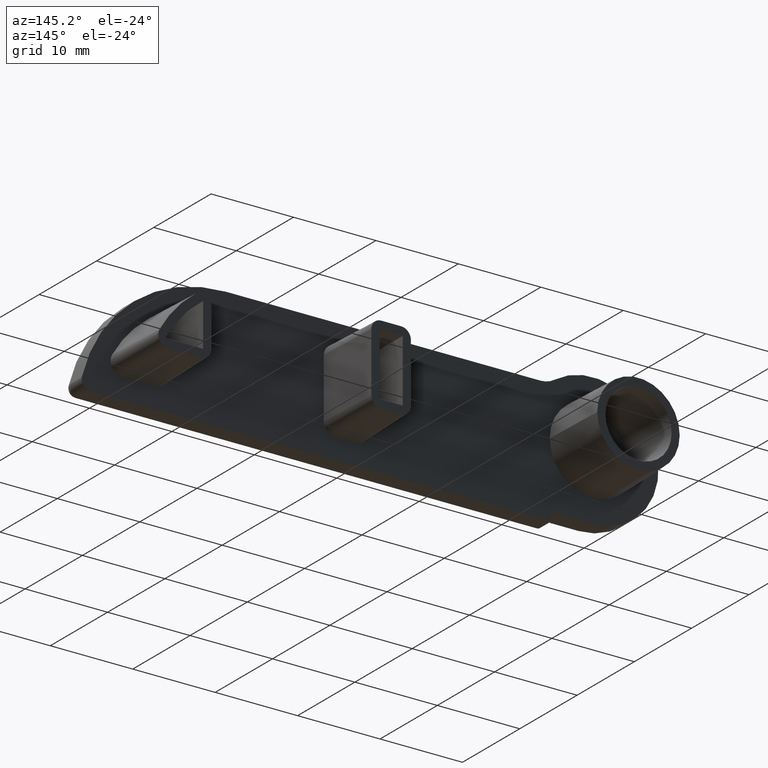
[diagram: clean part render]
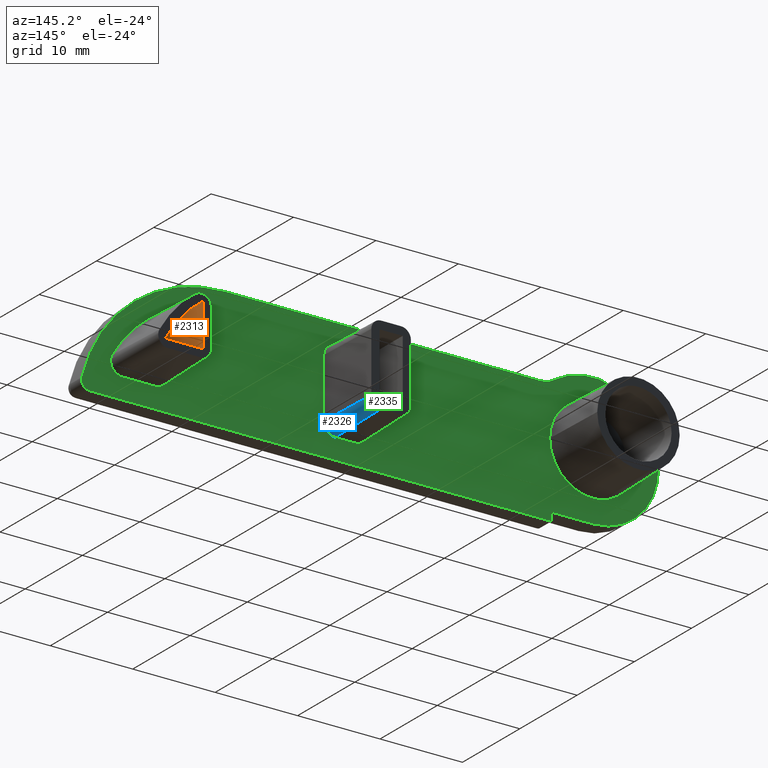
[diagram: same view with three faces highlighted in distinct colors, each labeled with its STEP entity id]
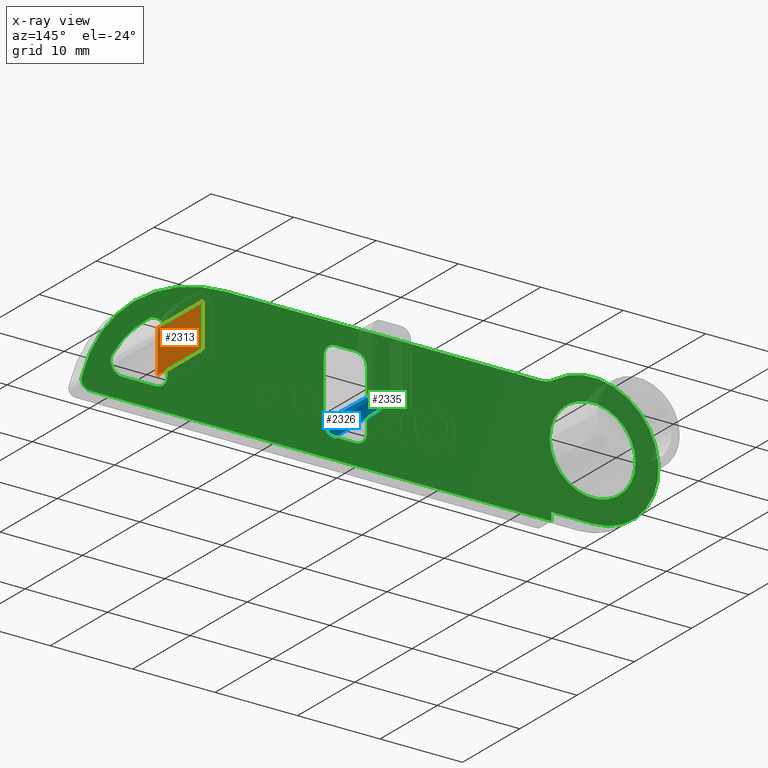
[diagram: x-ray of the same camera — body ghosted, the three highlighted faces saturated]
A machine part, auxiliary view with three faces highlighted in distinct colors.
The next image is the same camera in x-ray (body ghosted, the three faces saturated) — at least one of them is partly hidden behind the body in this view.
Their STEP definitions:

[orange] entity #2313 — the highlighted planar face has unit normal (-1, 0, 0).
#321=FACE_OUTER_BOUND('',#471,.T.);
#471=EDGE_LOOP('',(#1987,#1988,#1989,#1990));
#666=LINE('',#4408,#877);
#668=LINE('',#4414,#879);
#669=LINE('',#4416,#880);
#670=LINE('',#4417,#881);
#877=VECTOR('',#2840,10.);
#879=VECTOR('',#2846,10.);
#880=VECTOR('',#2847,10.);
#881=VECTOR('',#2848,10.);
#1100=VERTEX_POINT('',#4404);
#1102=VERTEX_POINT('',#4407);
#1104=VERTEX_POINT('',#4413);
#1105=VERTEX_POINT('',#4415);
#1406=EDGE_CURVE('',#1100,#1102,#666,.T.);
#1409=EDGE_CURVE('',#1104,#1100,#668,.T.);
#1410=EDGE_CURVE('',#1104,#1105,#669,.T.);
#1411=EDGE_CURVE('',#1102,#1105,#670,.T.);
#1987=ORIENTED_EDGE('',*,*,#1409,.F.);
#1988=ORIENTED_EDGE('',*,*,#1410,.T.);
#1989=ORIENTED_EDGE('',*,*,#1411,.F.);
#1990=ORIENTED_EDGE('',*,*,#1406,.F.);
#2187=PLANE('',#2453);
#2313=ADVANCED_FACE('',(#321),#2187,.F.);
#2453=AXIS2_PLACEMENT_3D('',#4412,#2844,#2845);
#2840=DIRECTION('',(0.,1.,0.));
#2844=DIRECTION('center_axis',(-1.,0.,0.));
#2845=DIRECTION('ref_axis',(0.,0.,1.));
#2846=DIRECTION('',(0.,0.,1.));
#2847=DIRECTION('',(0.,1.,0.));
#2848=DIRECTION('',(0.,-4.72726437266745E-17,-1.));
#4404=CARTESIAN_POINT('',(52.8072697549574,1.5,-0.0520258457741796));
#4407=CARTESIAN_POINT('',(52.8072697549574,9.5,-0.0520258457741796));
#4408=CARTESIAN_POINT('',(52.8072697549574,1.5,-0.0520258457741796));
#4412=CARTESIAN_POINT('Origin',(52.8072697549574,1.5,-5.26453338819946));
#4413=CARTESIAN_POINT('',(52.8072697549574,1.5,-5.26453338819946));
#4414=CARTESIAN_POINT('',(52.8072697549574,1.5,-3.60448445287734));
#4415=CARTESIAN_POINT('',(52.8072697549574,9.5,-5.26453338819946));
#4416=CARTESIAN_POINT('',(52.8072697549574,1.5,-5.26453338819946));
#4417=CARTESIAN_POINT('',(52.8072697549574,9.5,-4.34704432659745));

[blue] entity #2326 — the highlighted conical surface has half-angle 1.5 deg.
#20=CONICAL_SURFACE('',#2474,1.2,0.0261799387799149);
#70=CIRCLE('',#2475,1.4094873725535);
#71=CIRCLE('',#2476,1.2);
#334=FACE_OUTER_BOUND('',#485,.T.);
#485=EDGE_LOOP('',(#2044,#2045,#2046,#2047));
#695=LINE('',#4487,#906);
#696=LINE('',#4490,#907);
#906=VECTOR('',#2917,10.);
#907=VECTOR('',#2920,10.);
#1126=VERTEX_POINT('',#4483);
#1127=VERTEX_POINT('',#4484);
#1128=VERTEX_POINT('',#4486);
#1129=VERTEX_POINT('',#4488);
#1444=EDGE_CURVE('',#1126,#1127,#70,.T.);
#1445=EDGE_CURVE('',#1126,#1128,#695,.T.);
#1446=EDGE_CURVE('',#1129,#1128,#71,.T.);
#1447=EDGE_CURVE('',#1127,#1129,#696,.T.);
#2044=ORIENTED_EDGE('',*,*,#1444,.F.);
#2045=ORIENTED_EDGE('',*,*,#1445,.T.);
#2046=ORIENTED_EDGE('',*,*,#1446,.F.);
#2047=ORIENTED_EDGE('',*,*,#1447,.F.);
#2326=ADVANCED_FACE('',(#334),#20,.T.);
#2474=AXIS2_PLACEMENT_3D('',#4482,#2913,#2914);
#2475=AXIS2_PLACEMENT_3D('',#4485,#2915,#2916);
#2476=AXIS2_PLACEMENT_3D('',#4489,#2918,#2919);
#2913=DIRECTION('center_axis',(0.,-1.,0.));
#2914=DIRECTION('ref_axis',(1.,0.,-9.251858538543E-16));
#2915=DIRECTION('center_axis',(0.,-1.,0.));
#2916=DIRECTION('ref_axis',(1.,0.,-9.251858538543E-16));
#2917=DIRECTION('',(0.,0.999657324975557,0.0261769483078732));
#2918=DIRECTION('center_axis',(0.,1.,0.));
#2919=DIRECTION('ref_axis',(1.,0.,-9.251858538543E-16));
#2920=DIRECTION('',(-0.0261769483078732,0.999657324975557,1.61456948476796E-17));
#4482=CARTESIAN_POINT('Origin',(31.2,9.5,-5.10000000000001));
#4483=CARTESIAN_POINT('',(31.2,1.5,-6.50948737255351));
#4484=CARTESIAN_POINT('',(32.6094873725535,1.5,-5.10000000000002));
#4485=CARTESIAN_POINT('Origin',(31.2,1.5,-5.10000000000001));
#4486=CARTESIAN_POINT('',(31.2,9.5,-6.30000000000001));
#4487=CARTESIAN_POINT('',(31.2,1.50274140019554,-6.509415586463));
#4488=CARTESIAN_POINT('',(32.4,9.5,-5.10000000000002));
#4489=CARTESIAN_POINT('Origin',(31.2,9.5,-5.10000000000001));
#4490=CARTESIAN_POINT('',(32.609415586463,1.50274140019554,-5.10000000000002));

[green] entity #2335 — the highlighted planar face has unit normal (0, 1, 0).
#53=CIRCLE('',#2436,8.);
#54=CIRCLE('',#2438,2.99999999999997);
#55=CIRCLE('',#2441,18.);
#59=CIRCLE('',#2448,5.20948737255349);
#62=CIRCLE('',#2457,1.4094873725535);
#64=CIRCLE('',#2461,1.4094873725535);
#66=CIRCLE('',#2464,15.7746058568414);
#68=CIRCLE('',#2467,1.4094873725535);
#70=CIRCLE('',#2475,1.4094873725535);
#72=CIRCLE('',#2479,1.4094873725535);
#74=CIRCLE('',#2483,1.4094873725535);
#76=CIRCLE('',#2487,1.4094873725535);
#78=CIRCLE('',#2492,1.);
#96=FACE_BOUND('',#496,.T.);
#97=FACE_BOUND('',#497,.T.);
#98=FACE_BOUND('',#498,.T.);
#343=FACE_OUTER_BOUND('',#495,.T.);
#495=EDGE_LOOP('',(#2088,#2089,#2090,#2091,#2092,#2093,#2094,#2095));
#496=EDGE_LOOP('',(#2096,#2097,#2098,#2099,#2100,#2101,#2102,#2103));
#497=EDGE_LOOP('',(#2104,#2105,#2106,#2107,#2108,#2109));
#498=EDGE_LOOP('',(#2110));
#662=LINE('',#4384,#873);
#673=LINE('',#4424,#884);
#678=LINE('',#4438,#889);
#697=LINE('',#4493,#908);
#701=LINE('',#4505,#912);
#705=LINE('',#4517,#916);
#709=LINE('',#4528,#920);
#711=LINE('',#4535,#922);
#712=LINE('',#4537,#923);
#713=LINE('',#4538,#924);
#873=VECTOR('',#2812,10.);
#884=VECTOR('',#2855,10.);
#889=VECTOR('',#2868,10.);
#908=VECTOR('',#2923,10.);
#912=VECTOR('',#2935,10.);
#916=VECTOR('',#2947,10.);
#920=VECTOR('',#2959,10.);
#922=VECTOR('',#2967,10.);
#923=VECTOR('',#2968,10.);
#924=VECTOR('',#2969,10.);
#1091=VERTEX_POINT('',#4372);
#1092=VERTEX_POINT('',#4374);
#1093=VERTEX_POINT('',#4378);
#1094=VERTEX_POINT('',#4382);
#1095=VERTEX_POINT('',#4386);
#1099=VERTEX_POINT('',#4399);
#1106=VERTEX_POINT('',#4422);
#1107=VERTEX_POINT('',#4423);
#1110=VERTEX_POINT('',#4431);
#1112=VERTEX_POINT('',#4437);
#1114=VERTEX_POINT('',#4443);
#1116=VERTEX_POINT('',#4449);
#1126=VERTEX_POINT('',#4483);
#1127=VERTEX_POINT('',#4484);
#1130=VERTEX_POINT('',#4492);
#1132=VERTEX_POINT('',#4498);
#1134=VERTEX_POINT('',#4504);
#1136=VERTEX_POINT('',#4510);
#1138=VERTEX_POINT('',#4516);
#1140=VERTEX_POINT('',#4522);
#1142=VERTEX_POINT('',#4532);
#1143=VERTEX_POINT('',#4534);
#1144=VERTEX_POINT('',#4536);
#1391=EDGE_CURVE('',#1092,#1091,#53,.T.);
#1394=EDGE_CURVE('',#1091,#1093,#54,.T.);
#1396=EDGE_CURVE('',#1093,#1094,#662,.T.);
#1398=EDGE_CURVE('',#1094,#1095,#55,.T.);
#1404=EDGE_CURVE('',#1099,#1099,#59,.T.);
#1414=EDGE_CURVE('',#1106,#1107,#673,.T.);
#1418=EDGE_CURVE('',#1107,#1110,#62,.T.);
#1421=EDGE_CURVE('',#1110,#1112,#678,.T.);
#1424=EDGE_CURVE('',#1112,#1114,#64,.T.);
#1427=EDGE_CURVE('',#1114,#1116,#66,.T.);
#1430=EDGE_CURVE('',#1116,#1106,#68,.T.);
#1444=EDGE_CURVE('',#1126,#1127,#70,.T.);
#1448=EDGE_CURVE('',#1127,#1130,#697,.T.);
#1451=EDGE_CURVE('',#1130,#1132,#72,.T.);
#1454=EDGE_CURVE('',#1132,#1134,#701,.T.);
#1457=EDGE_CURVE('',#1134,#1136,#74,.T.);
#1460=EDGE_CURVE('',#1136,#1138,#705,.T.);
#1463=EDGE_CURVE('',#1138,#1140,#76,.T.);
#1466=EDGE_CURVE('',#1140,#1126,#709,.T.);
#1468=EDGE_CURVE('',#1095,#1142,#78,.T.);
#1469=EDGE_CURVE('',#1142,#1143,#711,.T.);
#1470=EDGE_CURVE('',#1143,#1144,#712,.T.);
#1471=EDGE_CURVE('',#1144,#1092,#713,.T.);
#2088=ORIENTED_EDGE('',*,*,#1396,.T.);
#2089=ORIENTED_EDGE('',*,*,#1398,.T.);
#2090=ORIENTED_EDGE('',*,*,#1468,.T.);
#2091=ORIENTED_EDGE('',*,*,#1469,.T.);
#2092=ORIENTED_EDGE('',*,*,#1470,.T.);
#2093=ORIENTED_EDGE('',*,*,#1471,.T.);
#2094=ORIENTED_EDGE('',*,*,#1391,.T.);
#2095=ORIENTED_EDGE('',*,*,#1394,.T.);
#2096=ORIENTED_EDGE('',*,*,#1444,.T.);
#2097=ORIENTED_EDGE('',*,*,#1448,.T.);
#2098=ORIENTED_EDGE('',*,*,#1451,.T.);
#2099=ORIENTED_EDGE('',*,*,#1454,.T.);
#2100=ORIENTED_EDGE('',*,*,#1457,.T.);
#2101=ORIENTED_EDGE('',*,*,#1460,.T.);
#2102=ORIENTED_EDGE('',*,*,#1463,.T.);
#2103=ORIENTED_EDGE('',*,*,#1466,.T.);
#2104=ORIENTED_EDGE('',*,*,#1414,.T.);
#2105=ORIENTED_EDGE('',*,*,#1418,.T.);
#2106=ORIENTED_EDGE('',*,*,#1421,.T.);
#2107=ORIENTED_EDGE('',*,*,#1424,.T.);
#2108=ORIENTED_EDGE('',*,*,#1427,.T.);
#2109=ORIENTED_EDGE('',*,*,#1430,.T.);
#2110=ORIENTED_EDGE('',*,*,#1404,.T.);
#2201=PLANE('',#2491);
#2335=ADVANCED_FACE('',(#343,#96,#97,#98),#2201,.T.);
#2436=AXIS2_PLACEMENT_3D('',#4375,#2801,#2802);
#2438=AXIS2_PLACEMENT_3D('',#4380,#2807,#2808);
#2441=AXIS2_PLACEMENT_3D('',#4388,#2816,#2817);
#2448=AXIS2_PLACEMENT_3D('',#4401,#2832,#2833);
#2457=AXIS2_PLACEMENT_3D('',#4432,#2861,#2862);
#2461=AXIS2_PLACEMENT_3D('',#4444,#2873,#2874);
#2464=AXIS2_PLACEMENT_3D('',#4450,#2880,#2881);
#2467=AXIS2_PLACEMENT_3D('',#4455,#2887,#2888);
#2475=AXIS2_PLACEMENT_3D('',#4485,#2915,#2916);
#2479=AXIS2_PLACEMENT_3D('',#4499,#2928,#2929);
#2483=AXIS2_PLACEMENT_3D('',#4511,#2940,#2941);
#2487=AXIS2_PLACEMENT_3D('',#4523,#2952,#2953);
#2491=AXIS2_PLACEMENT_3D('',#4531,#2963,#2964);
#2492=AXIS2_PLACEMENT_3D('',#4533,#2965,#2966);
#2801=DIRECTION('center_axis',(0.,1.,0.));
#2802=DIRECTION('ref_axis',(0.,0.,1.));
#2807=DIRECTION('center_axis',(0.,-1.,0.));
#2808=DIRECTION('ref_axis',(2.59052039079206E-15,0.,-1.));
#2812=DIRECTION('',(1.,0.,-1.16397745191681E-16));
#2816=DIRECTION('center_axis',(0.,1.,0.));
#2817=DIRECTION('ref_axis',(0.,0.,-1.));
#2832=DIRECTION('center_axis',(0.,-1.,0.));
#2833=DIRECTION('ref_axis',(-1.,0.,0.));
#2855=DIRECTION('',(0.,0.,-1.));
#2861=DIRECTION('center_axis',(0.,-1.,0.));
#2862=DIRECTION('ref_axis',(-7.40148683083436E-15,0.,-1.));
#2868=DIRECTION('',(1.,0.,0.));
#2873=DIRECTION('center_axis',(0.,-1.,0.));
#2874=DIRECTION('ref_axis',(0.875731126796851,0.,0.482799123403427));
#2880=DIRECTION('center_axis',(0.,-1.,0.));
#2881=DIRECTION('ref_axis',(0.593798192903563,0.,0.804614010631473));
#2887=DIRECTION('center_axis',(0.,-1.,0.));
#2888=DIRECTION('ref_axis',(-1.,0.,5.78241158658944E-17));
#2915=DIRECTION('center_axis',(0.,-1.,0.));
#2916=DIRECTION('ref_axis',(1.,0.,-9.251858538543E-16));
#2923=DIRECTION('',(6.16790569236198E-16,0.,1.));
#2928=DIRECTION('center_axis',(0.,-1.,0.));
#2929=DIRECTION('ref_axis',(0.,0.,1.));
#2935=DIRECTION('',(-1.,0.,2.31296463463575E-16));
#2940=DIRECTION('center_axis',(0.,-1.,0.));
#2941=DIRECTION('ref_axis',(-1.,0.,1.15648231731787E-15));
#2947=DIRECTION('',(0.,0.,-1.));
#2952=DIRECTION('center_axis',(0.,-1.,0.));
#2953=DIRECTION('ref_axis',(-3.70074341541719E-15,0.,-1.));
#2959=DIRECTION('',(1.,0.,-4.6259292692715E-16));
#2963=DIRECTION('center_axis',(0.,1.,0.));
#2964=DIRECTION('ref_axis',(0.,0.,1.));
#2965=DIRECTION('center_axis',(0.,1.,0.));
#2966=DIRECTION('ref_axis',(-0.971924214226959,0.,-0.235294117647058));
#2967=DIRECTION('',(-1.,0.,9.91270557701032E-17));
#2968=DIRECTION('',(0.,0.,1.));
#2969=DIRECTION('',(-1.,0.,-2.22044604925031E-16));
#4372=CARTESIAN_POINT('',(4.59967659660858,1.5,6.54545454545453));
#4374=CARTESIAN_POINT('',(0.,1.5,-8.00000000000002));
#4375=CARTESIAN_POINT('Origin',(0.,1.5,0.));
#4378=CARTESIAN_POINT('',(6.32455532033679,1.5,5.99999999999998));
#4380=CARTESIAN_POINT('Origin',(6.32455532033678,1.5,8.99999999999995));
#4382=CARTESIAN_POINT('',(44.4772883581417,1.5,5.99999999999998));
#4384=CARTESIAN_POINT('',(44.4772883581417,1.5,5.99999999999998));
#4386=CARTESIAN_POINT('',(61.971924214227,1.5,-7.76470588235297));
#4388=CARTESIAN_POINT('Origin',(44.4772883581417,1.5,-12.));
#4399=CARTESIAN_POINT('',(5.20948737255349,1.5,6.37978203599619E-16));
#4401=CARTESIAN_POINT('Origin',(0.,1.5,0.));
#4422=CARTESIAN_POINT('',(51.5977823824039,1.5,-0.441624403160838));
#4423=CARTESIAN_POINT('',(51.5977823824039,1.5,-5.06453338819947));
#4424=CARTESIAN_POINT('',(51.5977823824039,1.5,-3.50448445287735));
#4431=CARTESIAN_POINT('',(53.0072697549574,1.5,-6.47402076075297));
#4432=CARTESIAN_POINT('Origin',(53.0072697549574,1.5,-5.06453338819947));
#4437=CARTESIAN_POINT('',(57.0572697549574,1.5,-6.47402076075297));
#4438=CARTESIAN_POINT('',(41.8639429623904,1.5,-6.47402076075297));
#4443=CARTESIAN_POINT('',(58.2916017199296,1.5,-4.38403412028244));
#4444=CARTESIAN_POINT('Origin',(57.0572697549574,1.5,-5.06453338819947));
#4449=CARTESIAN_POINT('',(53.8442208097001,1.5,0.692468884603846));
#4450=CARTESIAN_POINT('Origin',(44.4772883581417,1.5,-12.));
#4455=CARTESIAN_POINT('Origin',(53.0072697549574,1.5,-0.441624403160838));
#4483=CARTESIAN_POINT('',(31.2,1.5,-6.50948737255351));
#4484=CARTESIAN_POINT('',(32.6094873725535,1.5,-5.10000000000002));
#4485=CARTESIAN_POINT('Origin',(31.2,1.5,-5.10000000000001));
#4492=CARTESIAN_POINT('',(32.6094873725535,1.5,2.09999999999998));
#4493=CARTESIAN_POINT('',(32.6094873725535,1.5,0.077782241222377));
#4498=CARTESIAN_POINT('',(31.2,1.5,3.50948737255348));
#4499=CARTESIAN_POINT('Origin',(31.2,1.5,2.09999999999998));
#4504=CARTESIAN_POINT('',(28.8,1.5,3.50948737255348));
#4505=CARTESIAN_POINT('',(27.7353080849117,1.5,3.50948737255348));
#4510=CARTESIAN_POINT('',(27.3905126274465,1.5,2.09999999999999));
#4511=CARTESIAN_POINT('Origin',(28.8,1.5,2.09999999999998));
#4516=CARTESIAN_POINT('',(27.3905126274465,1.5,-5.10000000000001));
#4517=CARTESIAN_POINT('',(27.3905126274465,1.5,-3.52221775877762));
#4522=CARTESIAN_POINT('',(28.8,1.5,-6.50948737255351));
#4523=CARTESIAN_POINT('Origin',(28.8,1.5,-5.10000000000001));
#4528=CARTESIAN_POINT('',(28.9353080849117,1.5,-6.50948737255351));
#4531=CARTESIAN_POINT('Origin',(26.6706161698233,1.5,-1.94443551755523));
#4532=CARTESIAN_POINT('',(61.,1.5,-9.00000000000002));
#4533=CARTESIAN_POINT('Origin',(61.,1.5,-8.00000000000003));
#4534=CARTESIAN_POINT('',(5.,1.5,-9.00000000000002));
#4535=CARTESIAN_POINT('',(5.,1.5,-9.00000000000002));
#4536=CARTESIAN_POINT('',(5.,1.5,-8.00000000000002));
#4537=CARTESIAN_POINT('',(5.,1.5,-8.00000000000002));
#4538=CARTESIAN_POINT('',(0.,1.5,-8.00000000000002));